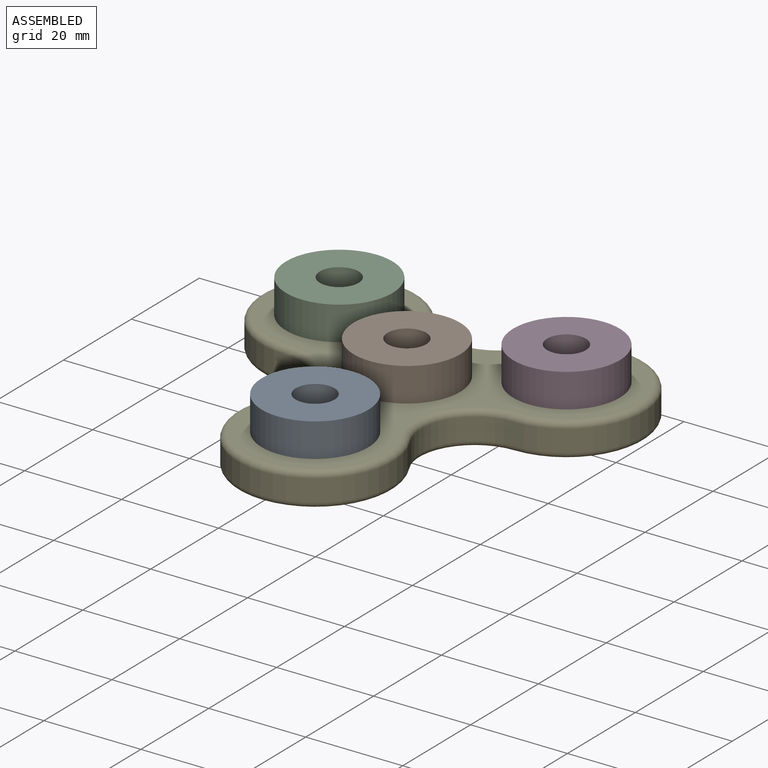
[diagram: assembled view]
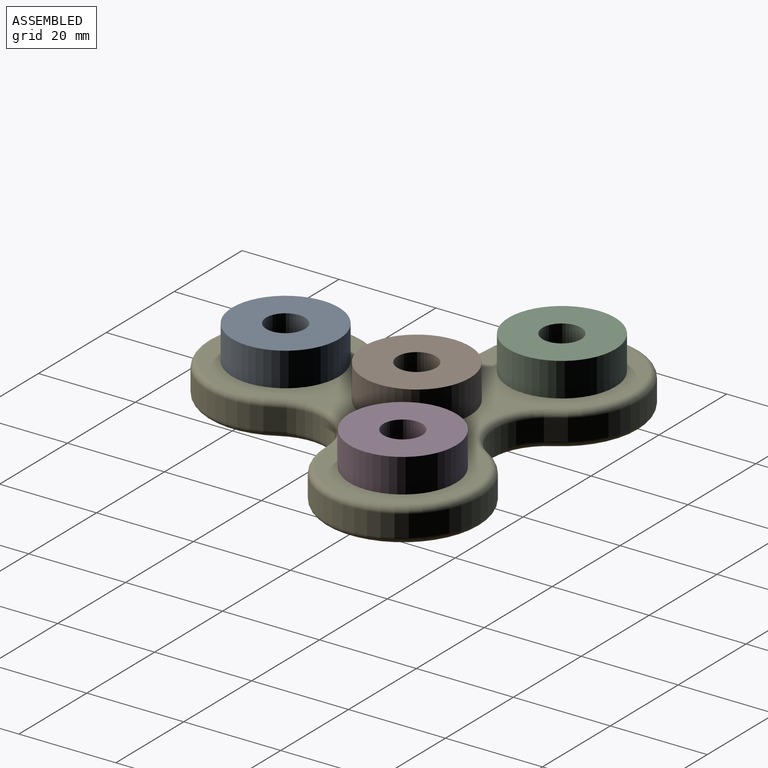
[diagram: assembled view, second angle]
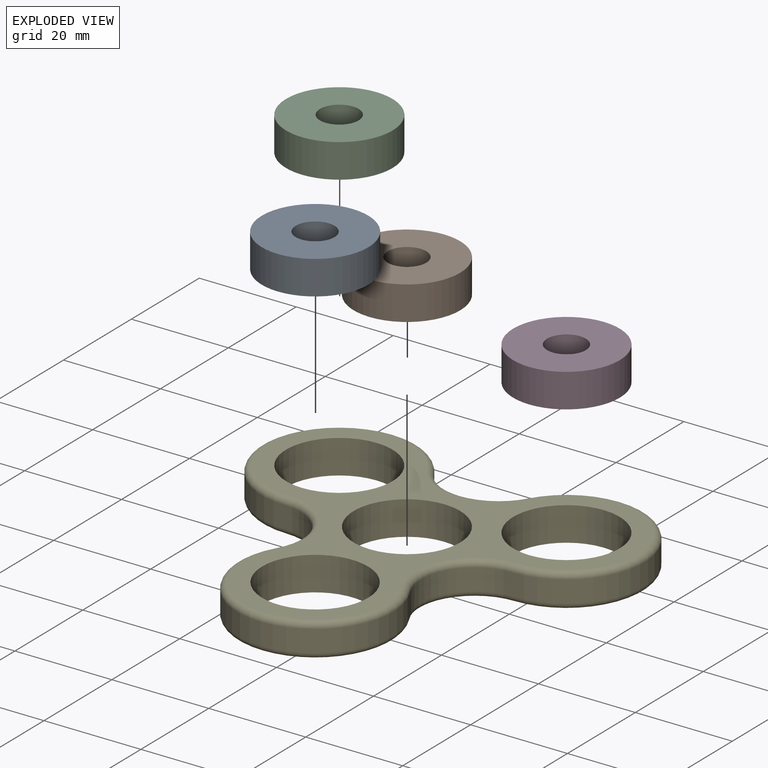
[diagram: exploded view]
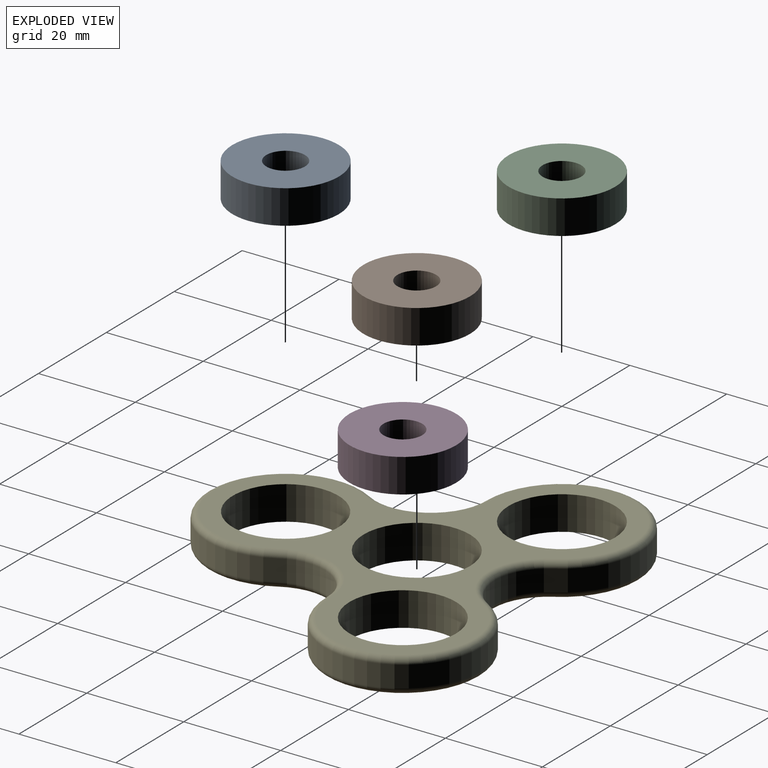
[diagram: exploded view, second angle]
ASSEMBLY  parts=5 mates=4
PART A: 4 faces, bbox 22x22x7 mm
  f0: cylinder r=4mm len=8mm, axis (0,0,-1), area 175.9mm2, adj f2,f3
  f1: cylinder r=11mm len=22mm, axis (0,0,-1), area 483.8mm2, adj f2,f3
  f2: plane 22x22mm, normal (0,0,1), area 329.9mm2, adj f0,f1
  f3: plane 22x22mm, normal (0,0,-1), area 329.9mm2, adj f0,f1
PART B: same geometry as A
PART C: same geometry as A
PART D: same geometry as A
PART E: 24 faces, bbox 81.7x75.4x7 mm
  f0: cylinder r=16.07mm len=32.14mm, axis (0,0,-1), area 300.2mm2, adj f1,f6,f12,f18
  f1: cylinder r=10.99mm len=16.49mm, axis (0,0,-1), area 102.7mm2, adj f0,f2,f13,f19
  f2: cylinder r=16.07mm len=32.14mm, axis (0,0,-1), area 300.2mm2, adj f1,f3,f15,f21
  f3: cylinder r=10.99mm len=16.49mm, axis (0,0,-1), area 102.7mm2, adj f2,f4,f17,f23
  f4: cylinder r=16.07mm len=32.14mm, axis (0,0,-1), area 300.2mm2, adj f3,f6,f16,f22
  f5: cylinder r=10.94mm len=21.87mm, axis (0,0,-1), area 481mm2, adj f10,f11
  f6: cylinder r=10.99mm len=19.04mm, axis (0,0,-1), area 102.7mm2, adj f0,f4,f14,f20
  f7: cylinder r=10.99mm len=21.98mm, axis (0,0,-1), area 483.4mm2, adj f10,f11
  f8: cylinder r=10.99mm len=21.98mm, axis (0,0,-1), area 483.4mm2, adj f10,f11
  f9: cylinder r=10.99mm len=21.98mm, axis (0,0,-1), area 483.4mm2, adj f10,f11
  f10: plane 76.47x70.19mm, normal (0,0,1), area 1292.5mm2, adj f5,f7,f8,f9,f18,f19,f20,f21
  f11: plane 76.47x70.19mm, normal (0,0,-1), area 1292.5mm2, adj f5,f7,f8,f9,f12,f13,f14,f15
  f12: torus R=14.8mm, axis (0,0,1), area 130.4mm2, adj f0,f11,f13,f14
  f13: torus R=12.26mm, axis (0,0,1), area 47.8mm2, adj f1,f11,f12,f15
  f14: torus R=12.26mm, axis (0,0,1), area 47.8mm2, adj f6,f11,f12,f16
  f15: torus R=14.8mm, axis (0,0,1), area 130.4mm2, adj f2,f11,f13,f17
  f16: torus R=14.8mm, axis (0,0,1), area 130.4mm2, adj f4,f11,f14,f17
  f17: torus R=12.26mm, axis (0,0,1), area 47.8mm2, adj f3,f11,f15,f16
  f18: torus R=14.8mm, axis (0,0,1), area 130.4mm2, adj f0,f10,f19,f20
  f19: torus R=12.26mm, axis (0,0,1), area 47.8mm2, adj f1,f10,f18,f21
  f20: torus R=12.26mm, axis (0,0,1), area 47.8mm2, adj f6,f10,f18,f22
  f21: torus R=14.8mm, axis (0,0,1), area 130.4mm2, adj f2,f10,f19,f23
  f22: torus R=14.8mm, axis (0,0,1), area 130.4mm2, adj f4,f10,f20,f23
  f23: torus R=12.26mm, axis (0,0,1), area 47.8mm2, adj f3,f10,f21,f22
PLACE A t=(-3.61,-23.51,1.81)mm
PLACE B t=(-3.61,3.55,1.81)mm
PLACE C t=(-27.04,17.09,1.81)mm
PLACE D t=(19.83,17.09,1.81)mm
PLACE E t=(-3.61,3.55,-5.19)mm
MATE cylindrical D.f0 <-> E.f4  axis (0,0,-1) through (19.83,17.09,1.81)mm
MATE cylindrical A.f0 <-> E.f5  axis (0,0,-1) through (-3.61,-23.51,1.81)mm
MATE cylindrical C.f0 <-> E.f0  axis (0,0,-1) through (-27.04,17.09,1.81)mm
MATE cylindrical B.f0 <-> E.f7  axis (0,0,-1) through (-3.61,3.55,1.81)mm
